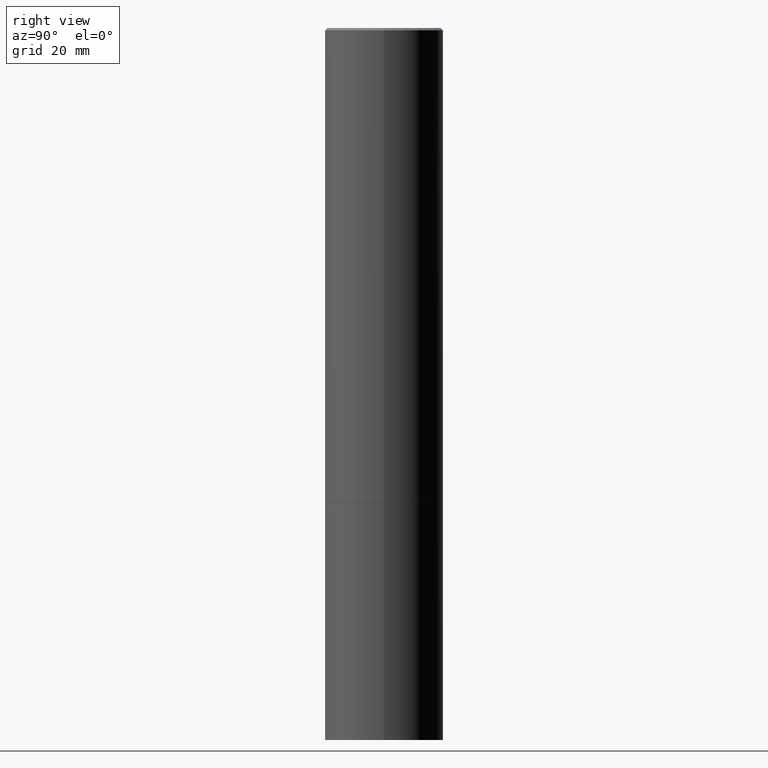
[diagram: clean part render]
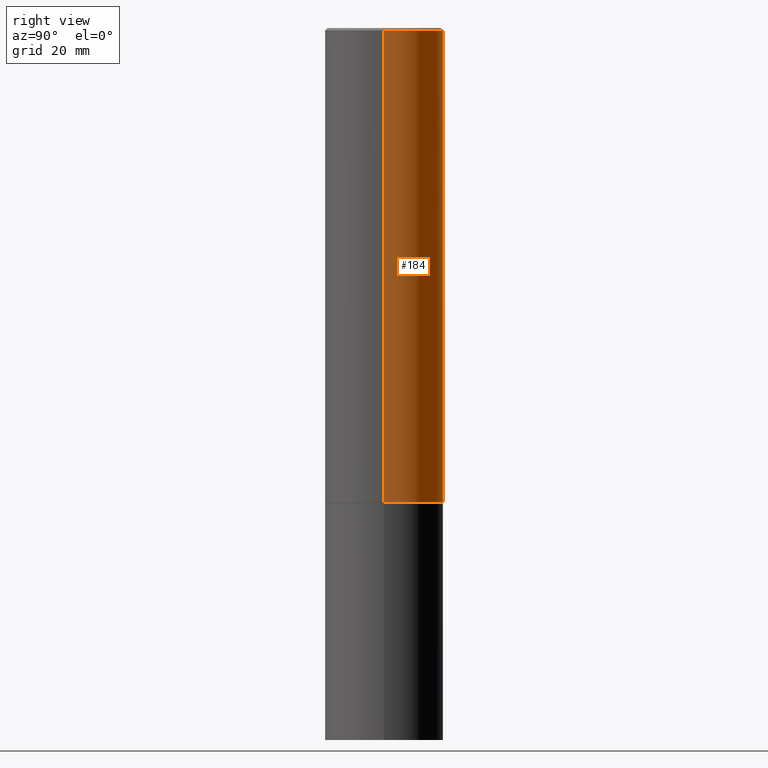
[diagram: same view with one face highlighted and labeled with its STEP entity id]
A machine part, right view. The second image highlights one B-rep face of the part: STEP entity #184.
In plain terms, the highlighted cylindrical surface (partial cylindrical patch) has radius 12.7 mm, axis along (-0, 0, 1).
Its self-contained STEP definition (entity closure, byte-faithful):
#2 = DIRECTION ( 'NONE',  ( 1.000000000000000000, -6.982962677686266711E-15, 0.000000000000000000 ) ) ;
#4 = CIRCLE ( 'NONE', #104, 0.4999999999999995004 ) ;
#30 = VERTEX_POINT ( 'NONE', #287 ) ;
#32 = DIRECTION ( 'NONE',  ( -2.445468806185136877E-29, 3.491481338843145188E-15, 1.000000000000000000 ) ) ;
#37 = EDGE_CURVE ( 'NONE', #366, #30, #38, .T. ) ;
#38 = LINE ( 'NONE', #219, #147 ) ;
#56 = FACE_OUTER_BOUND ( 'NONE', #61, .T. ) ;
#61 = EDGE_LOOP ( 'NONE', ( #221, #77, #281, #316 ) ) ;
#73 = CYLINDRICAL_SURFACE ( 'NONE', #109, 0.4999999999999997224 ) ;
#77 = ORIENTED_EDGE ( 'NONE', *, *, #205, .T. ) ;
#80 = VERTEX_POINT ( 'NONE', #325 ) ;
#104 = AXIS2_PLACEMENT_3D ( 'NONE', #297, #302, #142 ) ;
#109 = AXIS2_PLACEMENT_3D ( 'NONE', #154, #217, #311 ) ;
#120 = CIRCLE ( 'NONE', #226, 0.5000000000000000000 ) ;
#126 = CARTESIAN_POINT ( 'NONE',  ( -0.4999999999999997224, 3.552713678800498957E-15, -2.459467545127451490E-29 ) ) ;
#142 = DIRECTION ( 'NONE',  ( 1.000000000000000000, -6.982962677686267499E-15, 0.000000000000000000 ) ) ;
#147 = VECTOR ( 'NONE', #32, 39.37007874015748143 ) ;
#149 = LINE ( 'NONE', #126, #275 ) ;
#150 = CARTESIAN_POINT ( 'NONE',  ( 9.779429755934365268E-29, -1.396243387403374563E-14, -3.999000000000001886 ) ) ;
#151 = VERTEX_POINT ( 'NONE', #357 ) ;
#154 = CARTESIAN_POINT ( 'NONE',  ( 0.000000000000000000, 0.000000000000000000, 0.000000000000000000 ) ) ;
#165 = CARTESIAN_POINT ( 'NONE',  ( 0.5000000000000000000, -1.745391521287687899E-14, -3.999000000000001886 ) ) ;
#182 = DIRECTION ( 'NONE',  ( -2.445468806185136877E-29, 3.491481338843145188E-15, 1.000000000000000000 ) ) ;
#184 = ADVANCED_FACE ( 'NONE', ( #56 ), #73, .T. ) ;
#189 = EDGE_CURVE ( 'NONE', #366, #151, #120, .T. ) ;
#205 = EDGE_CURVE ( 'NONE', #151, #80, #149, .T. ) ;
#217 = DIRECTION ( 'NONE',  ( -2.445468806185136597E-29, 3.491481338843145583E-15, 1.000000000000000000 ) ) ;
#219 = CARTESIAN_POINT ( 'NONE',  ( 0.4999999999999997224, -3.491481338843131383E-15, 2.438088387897966495E-29 ) ) ;
#221 = ORIENTED_EDGE ( 'NONE', *, *, #189, .T. ) ;
#226 = AXIS2_PLACEMENT_3D ( 'NONE', #150, #341, #2 ) ;
#275 = VECTOR ( 'NONE', #182, 39.37007874015748143 ) ;
#281 = ORIENTED_EDGE ( 'NONE', *, *, #328, .F. ) ;
#287 = CARTESIAN_POINT ( 'NONE',  ( 0.4999999999999995004, -3.500078625662625924E-15, -0.02000000000000007327 ) ) ;
#297 = CARTESIAN_POINT ( 'NONE',  ( 4.890937612370290675E-31, -6.982962677686316261E-17, -0.02000000000000007327 ) ) ;
#302 = DIRECTION ( 'NONE',  ( -2.445468806185136597E-29, 3.491481338843145583E-15, 1.000000000000000000 ) ) ;
#311 = DIRECTION ( 'NONE',  ( 1.000000000000000000, -6.982962677686266711E-15, 4.876176775795935793E-29 ) ) ;
#316 = ORIENTED_EDGE ( 'NONE', *, *, #37, .F. ) ;
#325 = CARTESIAN_POINT ( 'NONE',  ( -0.4999999999999995004, 3.421651712066266507E-15, -0.02000000000000007327 ) ) ;
#328 = EDGE_CURVE ( 'NONE', #30, #80, #4, .T. ) ;
#341 = DIRECTION ( 'NONE',  ( -2.445468806185136597E-29, 3.491481338843145583E-15, 1.000000000000000000 ) ) ;
#357 = CARTESIAN_POINT ( 'NONE',  ( -0.4999999999999999445, -3.463418071604800381E-15, -3.999000000000001886 ) ) ;
#366 = VERTEX_POINT ( 'NONE', #165 ) ;